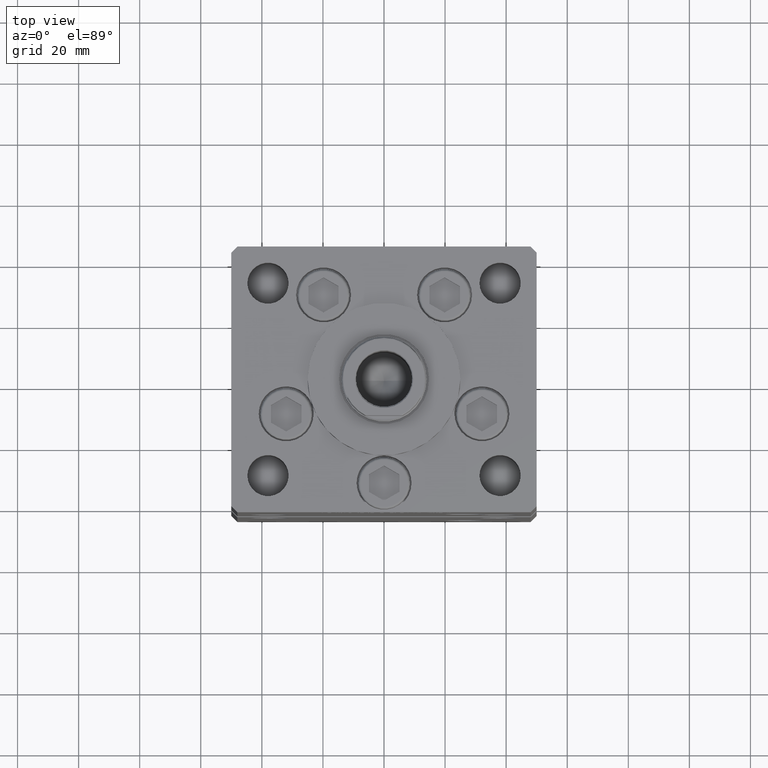
[diagram: clean part render]
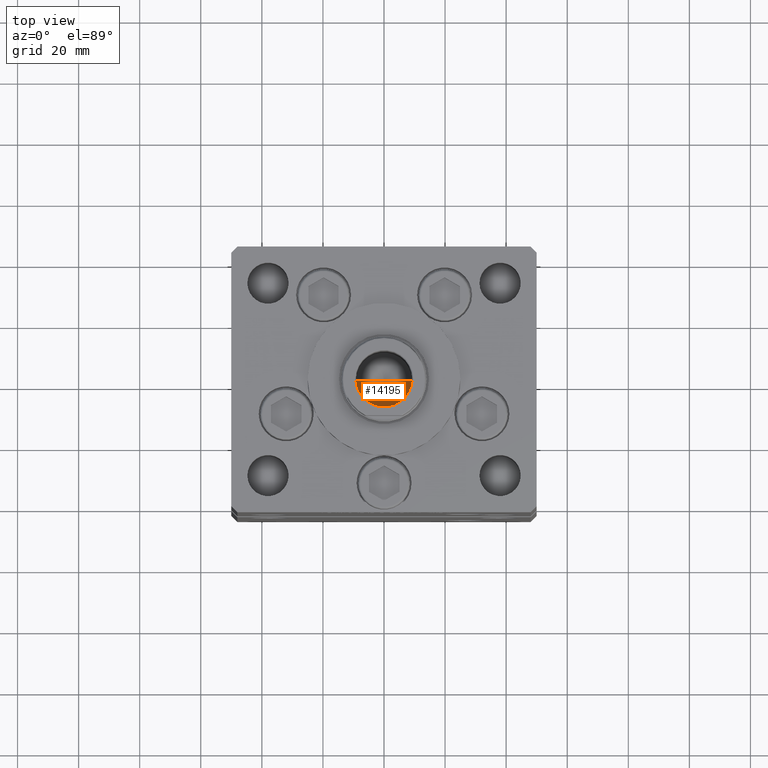
[diagram: same view with one face highlighted and labeled with its STEP entity id]
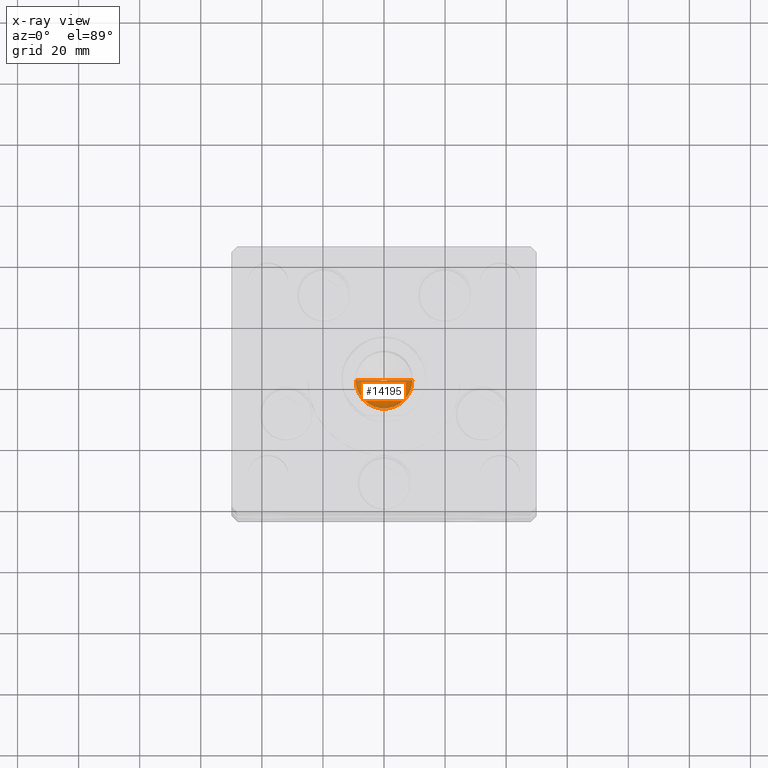
[diagram: x-ray of the same camera — body ghosted, the highlighted face saturated]
A machine part, top view. The second image highlights one B-rep face of the part: STEP entity #14195.
The next image is the same camera in x-ray: the body ghosted, the highlighted face saturated — about 9% of this face is hidden behind the body in this view.
In plain terms, the highlighted conical surface has half-angle 59 deg.
Its self-contained STEP definition (entity closure, byte-faithful):
#1593 = VERTEX_POINT ( 'NONE', #5173 ) ;
#3135 = LINE ( 'NONE', #52819, #8524 ) ;
#3970 = DIRECTION ( 'NONE',  ( 1.000000000000000000, 0.000000000000000000, 0.000000000000000000 ) ) ;
#5173 = CARTESIAN_POINT ( 'NONE',  ( 9.249999999999994671, 0.000000000000000000, 130.2500000000000000 ) ) ;
#6732 = EDGE_CURVE ( 'NONE', #40516, #1593, #9984, .T. ) ;
#8301 = CARTESIAN_POINT ( 'NONE',  ( 0.000000000000000000, 0.000000000000000000, 130.2500000000000000 ) ) ;
#8524 = VECTOR ( 'NONE', #31658, 1000.000000000000000 ) ;
#8793 = FACE_OUTER_BOUND ( 'NONE', #9355, .T. ) ;
#9355 = EDGE_LOOP ( 'NONE', ( #34600, #34509, #27919 ) ) ;
#9984 = CIRCLE ( 'NONE', #36570, 9.249999999999994671 ) ;
#13087 = DIRECTION ( 'NONE',  ( -0.000000000000000000, -0.000000000000000000, 1.000000000000000000 ) ) ;
#14195 = ADVANCED_FACE ( 'NONE', ( #8793 ), #53050, .F. ) ;
#19914 = EDGE_CURVE ( 'NONE', #42695, #1593, #3135, .T. ) ;
#21496 = CARTESIAN_POINT ( 'NONE',  ( -9.249999999999994671, 1.132798289211300909E-15, 130.2500000000000000 ) ) ;
#21752 = DIRECTION ( 'NONE',  ( -0.8571673007021117785, 1.049727191138617956E-16, 0.5150380749100550437 ) ) ;
#25145 = VECTOR ( 'NONE', #21752, 1000.000000000000000 ) ;
#27919 = ORIENTED_EDGE ( 'NONE', *, *, #6732, .T. ) ;
#31658 = DIRECTION ( 'NONE',  ( 0.8571673007021117785, 0.000000000000000000, 0.5150380749100550437 ) ) ;
#32467 = CARTESIAN_POINT ( 'NONE',  ( 0.000000000000000000, 0.000000000000000000, 130.2500000000000000 ) ) ;
#33557 = CARTESIAN_POINT ( 'NONE',  ( -9.249999999999994671, 1.132798289211300909E-15, 130.2500000000000000 ) ) ;
#34509 = ORIENTED_EDGE ( 'NONE', *, *, #38170, .T. ) ;
#34600 = ORIENTED_EDGE ( 'NONE', *, *, #19914, .F. ) ;
#36524 = CARTESIAN_POINT ( 'NONE',  ( -1.046994375366439223E-14, 0.000000000000000000, 124.6920392739950643 ) ) ;
#36570 = AXIS2_PLACEMENT_3D ( 'NONE', #8301, #44564, #49136 ) ;
#38170 = EDGE_CURVE ( 'NONE', #42695, #40516, #41900, .T. ) ;
#39318 = AXIS2_PLACEMENT_3D ( 'NONE', #32467, #13087, #3970 ) ;
#40516 = VERTEX_POINT ( 'NONE', #33557 ) ;
#41900 = LINE ( 'NONE', #21496, #25145 ) ;
#42695 = VERTEX_POINT ( 'NONE', #36524 ) ;
#44564 = DIRECTION ( 'NONE',  ( -0.000000000000000000, -0.000000000000000000, 1.000000000000000000 ) ) ;
#49136 = DIRECTION ( 'NONE',  ( 1.000000000000000000, 0.000000000000000000, 0.000000000000000000 ) ) ;
#52819 = CARTESIAN_POINT ( 'NONE',  ( 9.249999999999994671, 0.000000000000000000, 130.2500000000000000 ) ) ;
#53050 = CONICAL_SURFACE ( 'NONE', #39318, 9.249999999999994671, 1.029744258676653423 ) ;